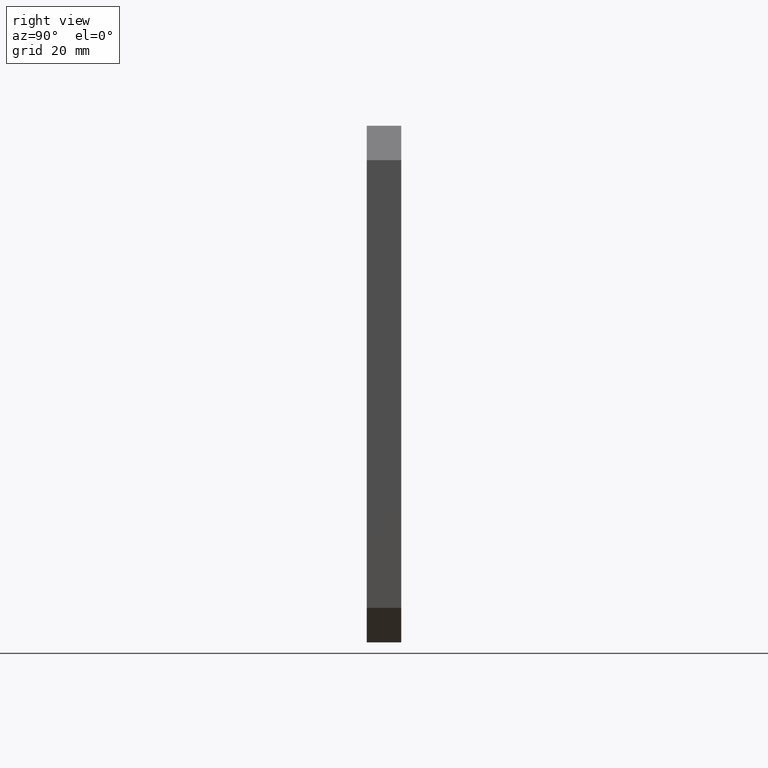
[diagram: clean part render]
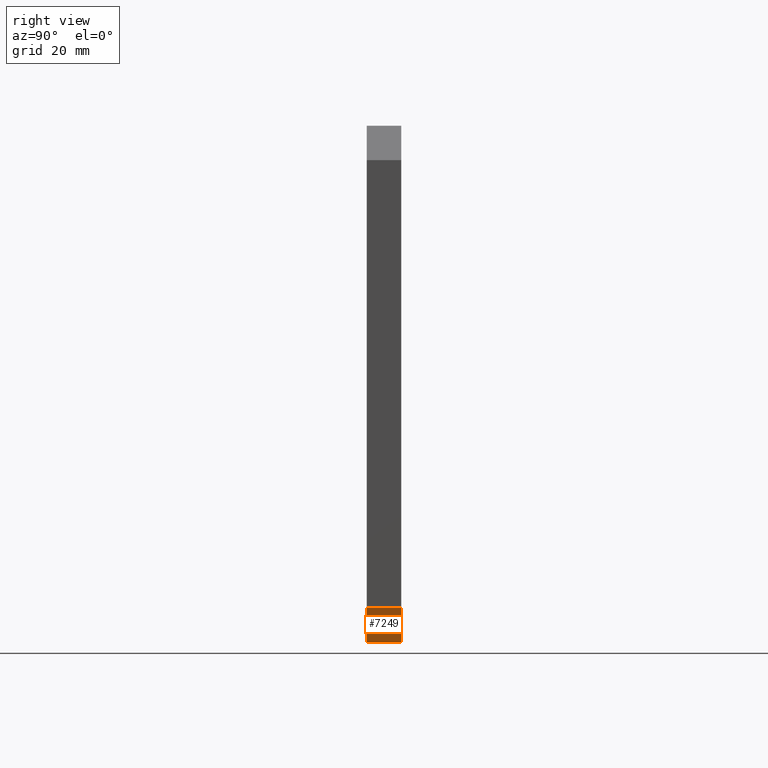
[diagram: same view with one face highlighted and labeled with its STEP entity id]
A machine part, right view. The second image highlights one B-rep face of the part: STEP entity #7249.
In plain terms, the highlighted planar face has unit normal (-0.7071, 0, 0.7071).
Its self-contained STEP definition (entity closure, byte-faithful):
#11 = ORIENTED_EDGE ( 'NONE', *, *, #6780, .F. ) ;
#341 = FACE_OUTER_BOUND ( 'NONE', #9365, .T. ) ;
#873 = LINE ( 'NONE', #944, #4525 ) ;
#944 = CARTESIAN_POINT ( 'NONE',  ( 74.99999999999998600, 10.00000000000000000, -64.99999999999997200 ) ) ;
#947 = DIRECTION ( 'NONE',  ( 0.0000000000000000000, -1.000000000000000000, 0.0000000000000000000 ) ) ;
#996 = LINE ( 'NONE', #2480, #1970 ) ;
#1024 = VERTEX_POINT ( 'NONE', #9074 ) ;
#1230 = ORIENTED_EDGE ( 'NONE', *, *, #9904, .F. ) ;
#1424 = VERTEX_POINT ( 'NONE', #2185 ) ;
#1441 = CARTESIAN_POINT ( 'NONE',  ( 70.00000000000007100, 10.00000000000000000, -69.99999999999988600 ) ) ;
#1498 = EDGE_CURVE ( 'NONE', #1024, #2930, #8082, .T. ) ;
#1534 = CARTESIAN_POINT ( 'NONE',  ( 65.00000000000000000, 10.00000000000000000, -74.99999999999998600 ) ) ;
#1970 = VECTOR ( 'NONE', #3395, 1000.000000000000000 ) ;
#2185 = CARTESIAN_POINT ( 'NONE',  ( 74.99999999999998600, 0.0000000000000000000, -64.99999999999997200 ) ) ;
#2480 = CARTESIAN_POINT ( 'NONE',  ( 65.00000000000000000, 0.0000000000000000000, -74.99999999999998600 ) ) ;
#2723 = DIRECTION ( 'NONE',  ( -0.7071067811865485700, 0.0000000000000000000, 0.7071067811865464600 ) ) ;
#2930 = VERTEX_POINT ( 'NONE', #6565 ) ;
#3281 = DIRECTION ( 'NONE',  ( -0.7071067811865465700, 0.0000000000000000000, -0.7071067811865485700 ) ) ;
#3294 = DIRECTION ( 'NONE',  ( 0.0000000000000000000, -1.000000000000000000, 0.0000000000000000000 ) ) ;
#3395 = DIRECTION ( 'NONE',  ( 0.7071067811865465700, -0.0000000000000000000, 0.7071067811865485700 ) ) ;
#3417 = VECTOR ( 'NONE', #3294, 1000.000000000000000 ) ;
#3526 = PLANE ( 'NONE',  #4383 ) ;
#3687 = VERTEX_POINT ( 'NONE', #7672 ) ;
#4383 = AXIS2_PLACEMENT_3D ( 'NONE', #9734, #2723, #947 ) ;
#4525 = VECTOR ( 'NONE', #9928, 1000.000000000000000 ) ;
#5369 = ORIENTED_EDGE ( 'NONE', *, *, #6557, .F. ) ;
#5796 = LINE ( 'NONE', #1534, #3417 ) ;
#6557 = EDGE_CURVE ( 'NONE', #1424, #1024, #873, .T. ) ;
#6565 = CARTESIAN_POINT ( 'NONE',  ( 64.99999999999994300, 10.00000000000000000, -75.00000000000000000 ) ) ;
#6607 = ORIENTED_EDGE ( 'NONE', *, *, #1498, .F. ) ;
#6780 = EDGE_CURVE ( 'NONE', #3687, #1424, #996, .T. ) ;
#7249 = ADVANCED_FACE ( 'NONE', ( #341 ), #3526, .F. ) ;
#7669 = VECTOR ( 'NONE', #3281, 1000.000000000000000 ) ;
#7672 = CARTESIAN_POINT ( 'NONE',  ( 64.99999999999997200, 0.0000000000000000000, -74.99999999999998600 ) ) ;
#8082 = LINE ( 'NONE', #1441, #7669 ) ;
#9074 = CARTESIAN_POINT ( 'NONE',  ( 74.99999999999998600, 10.00000000000000000, -64.99999999999995700 ) ) ;
#9365 = EDGE_LOOP ( 'NONE', ( #6607, #5369, #11, #1230 ) ) ;
#9734 = CARTESIAN_POINT ( 'NONE',  ( 65.00000000000000000, 10.00000000000000000, -74.99999999999998600 ) ) ;
#9904 = EDGE_CURVE ( 'NONE', #2930, #3687, #5796, .T. ) ;
#9928 = DIRECTION ( 'NONE',  ( 0.0000000000000000000, 1.000000000000000000, 0.0000000000000000000 ) ) ;